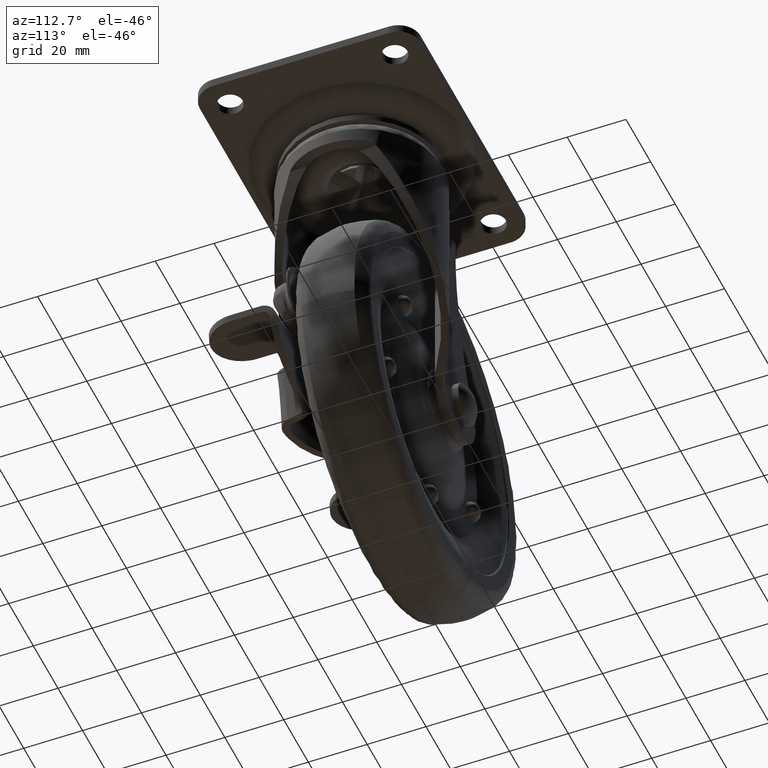
[diagram: clean part render]
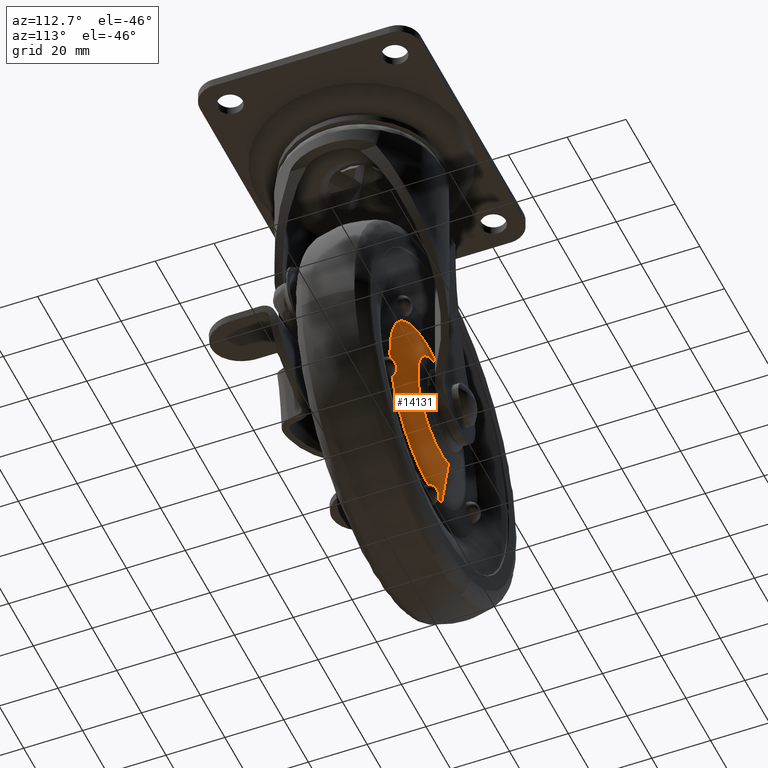
[diagram: same view with one face highlighted and labeled with its STEP entity id]
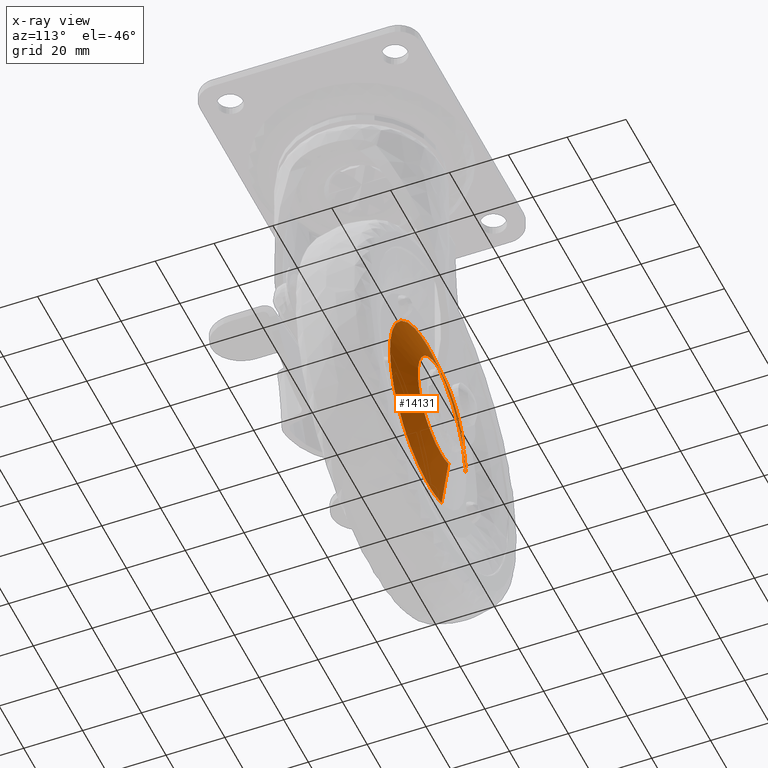
[diagram: x-ray of the same camera — body ghosted, the highlighted face saturated]
A machine part, auxiliary view. The second image highlights one B-rep face of the part: STEP entity #14131.
The next image is the same camera in x-ray: the body ghosted, the highlighted face saturated — about 3% of this face is hidden behind the body in this view.
In plain terms, the highlighted face is a freeform B-spline surface patch.
Its self-contained STEP definition (entity closure, byte-faithful):
#13980=CARTESIAN_POINT('',(-6.359786502572412,11.797339333047880,-101.932221133108030));
#13981=CARTESIAN_POINT('',(-3.816209536860836,11.797339333047889,-102.887595287958630));
#13982=CARTESIAN_POINT('',(-1.104197470016617,11.797339333047891,-103.053469051846600));
#13983=CARTESIAN_POINT('',(16.949271581829937,11.797339333047885,-104.157666521863160));
#13984=CARTESIAN_POINT('',(18.053469051846559,11.797339333047891,-86.104197470016615));
#13985=CARTESIAN_POINT('',(19.157666521863174,11.797339333047885,-68.050728418170038));
#13986=CARTESIAN_POINT('',(1.104197470016617,11.797339333047891,-66.946530948153452));
#13987=CARTESIAN_POINT('',(-16.949271581829937,11.797339333047885,-65.842333478136823));
#13988=CARTESIAN_POINT('',(-18.053469051846559,11.797339333047891,-83.895802529983385));
#13989=CARTESIAN_POINT('',(-11.013666473727897,7.392566516673801,-114.322656687300590));
#13990=CARTESIAN_POINT('',(-6.608784589835580,7.392566516673802,-115.977141833128670));
#13991=CARTESIAN_POINT('',(-1.912212406969666,7.392566516673802,-116.264396493558710));
#13992=CARTESIAN_POINT('',(29.352184086588998,7.392566516673802,-118.176608900528340));
#13993=CARTESIAN_POINT('',(31.264396493558660,7.392566516673802,-86.912212406969672));
#13994=CARTESIAN_POINT('',(33.176608900528329,7.392566516673802,-55.647815913411016));
#13995=CARTESIAN_POINT('',(1.912212406969666,7.392566516673802,-53.735603506441343));
#13996=CARTESIAN_POINT('',(-29.352184086588998,7.392566516673802,-51.823391099471650));
#13997=CARTESIAN_POINT('',(-31.264396493558660,7.392566516673802,-83.087787593030328));
#14005=(BOUNDED_SURFACE()B_SPLINE_SURFACE(2,1,((#13980,#13989),(#13981,#13990),(#13982,#13991),(#13983,#13992),(#13984,#13993),(#13985,#13994),(#13986,#13995),(#13987,#13996),(#13988,#13997)),.UNSPECIFIED.,.F.,.F.,.U.)B_SPLINE_SURFACE_WITH_KNOTS((3,2,2,2,3),(2,2),(0.0,10.379469440413910,62.276816642483482,114.174163844552990,166.071511046622590),(0.0,13.949319537969931),.UNSPECIFIED.)GEOMETRIC_REPRESENTATION_ITEM()RATIONAL_B_SPLINE_SURFACE(((0.906274169979695,0.906274169979695),(0.941421356237309,0.941421356237309),(1.0,1.0),(0.707106781186548,0.707106781186548),(1.0,1.0),(0.707106781186548,0.707106781186548),(1.0,1.0),(0.707106781186548,0.707106781186548),(1.0,1.0)))REPRESENTATION_ITEM('')SURFACE());
#14006=CARTESIAN_POINT('',(-6.470527252131586,11.692526178559509,-102.227056006314000));
#14007=VERTEX_POINT('',#14006);
#14008=CARTESIAN_POINT('',(0.0,11.692526178583300,-103.402151547105110));
#14009=VERTEX_POINT('',#14008);
#14010=CARTESIAN_POINT('',(-6.470527252131586,11.692526178559509,-102.227056006313970));
#14011=CARTESIAN_POINT('',(-3.341966641209730,11.692526178583279,-103.402151547105150));
#14012=CARTESIAN_POINT('',(0.0,11.692526178583300,-103.402151547105110));
#14020=(BOUNDED_CURVE()B_SPLINE_CURVE(2,(#14010,#14011,#14012),.UNSPECIFIED.,.F.,.U.)B_SPLINE_CURVE_WITH_KNOTS((3,3),(0.940284170886687,1.0),.UNSPECIFIED.)CURVE()GEOMETRIC_REPRESENTATION_ITEM()RATIONAL_B_SPLINE_CURVE((0.893499554620808,0.930038554387550,1.0))REPRESENTATION_ITEM(''));
#14021=EDGE_CURVE('',#14007,#14009,#14020,.T.);
#14022=ORIENTED_EDGE('',*,*,#14021,.T.);
#14023=CARTESIAN_POINT('',(18.279071310351551,11.692526178578779,-87.124790247107441));
#14024=VERTEX_POINT('',#14023);
#14025=CARTESIAN_POINT('',(0.0,11.692526178583300,-103.402151547105110));
#14026=CARTESIAN_POINT('',(16.386963228686493,11.692526178583138,-103.402151547105550));
#14027=CARTESIAN_POINT('',(18.279071310351547,11.692526178578779,-87.124790247107441));
#14035=(BOUNDED_CURVE()B_SPLINE_CURVE(2,(#14025,#14026,#14027),.UNSPECIFIED.,.F.,.U.)B_SPLINE_CURVE_WITH_KNOTS((3,3),(0.0,0.229999999985946),.UNSPECIFIED.)CURVE()GEOMETRIC_REPRESENTATION_ITEM()RATIONAL_B_SPLINE_CURVE((1.0,0.730538238708090,0.956886118162997))REPRESENTATION_ITEM(''));
#14036=EDGE_CURVE('',#14009,#14024,#14035,.T.);
#14037=ORIENTED_EDGE('',*,*,#14036,.T.);
#14038=CARTESIAN_POINT('',(0.0,11.692526178583140,-66.597848452894453));
#14039=VERTEX_POINT('',#14038);
#14040=CARTESIAN_POINT('',(18.279071310351544,11.692526178578786,-87.124790247107441));
#14041=CARTESIAN_POINT('',(18.402151547105550,11.692526178583138,-86.065959886317927));
#14042=CARTESIAN_POINT('',(18.402151547105550,11.692526178583140,-85.0));
#14043=CARTESIAN_POINT('',(18.402151547105550,11.692526178583137,-66.597848452894468));
#14044=CARTESIAN_POINT('',(0.0,11.692526178583140,-66.597848452894453));
#14052=(BOUNDED_CURVE()B_SPLINE_CURVE(2,(#14040,#14041,#14042,#14043,#14044),.UNSPECIFIED.,.F.,.U.)B_SPLINE_CURVE_WITH_KNOTS((3,2,3),(0.229999999985946,0.250000000000000,0.500000000000000),.UNSPECIFIED.)CURVE()GEOMETRIC_REPRESENTATION_ITEM()RATIONAL_B_SPLINE_CURVE((0.956886118162997,0.976568542478458,1.0,0.707106781186547,1.0))REPRESENTATION_ITEM(''));
#14053=EDGE_CURVE('',#14024,#14039,#14052,.T.);
#14054=ORIENTED_EDGE('',*,*,#14053,.T.);
#14055=CARTESIAN_POINT('',(-18.367827825088721,11.692526178533180,-83.876575522758799));
#14056=VERTEX_POINT('',#14055);
#14057=CARTESIAN_POINT('',(0.0,11.692526178583140,-66.597848452894453));
#14058=CARTESIAN_POINT('',(-17.311015602625410,11.692526178583138,-66.597848452894468));
#14059=CARTESIAN_POINT('',(-18.367827825088721,11.692526178533180,-83.876575522758799));
#14067=(BOUNDED_CURVE()B_SPLINE_CURVE(2,(#14057,#14058,#14059),.UNSPECIFIED.,.F.,.U.)B_SPLINE_CURVE_WITH_KNOTS((3,3),(0.500000000000000,0.739332962223515),.UNSPECIFIED.)CURVE()GEOMETRIC_REPRESENTATION_ITEM()RATIONAL_B_SPLINE_CURVE((1.0,0.719603993304785,0.976072041633653))REPRESENTATION_ITEM(''));
#14068=EDGE_CURVE('',#14039,#14056,#14067,.T.);
#14069=ORIENTED_EDGE('',*,*,#14068,.T.);
#14070=CARTESIAN_POINT('',(-30.942178751080359,7.499999999998607,-83.107495274391624));
#14071=VERTEX_POINT('',#14070);
#14072=CARTESIAN_POINT('',(-18.367827825088721,11.692526178533180,-83.876575522758799));
#14073=CARTESIAN_POINT('',(-30.942178751080359,7.499999999998607,-83.107495274391624));
#14074=QUASI_UNIFORM_CURVE('',1,(#14072,#14073),.UNSPECIFIED.,.F.,.U.);
#14075=EDGE_CURVE('',#14056,#14071,#14074,.T.);
#14076=ORIENTED_EDGE('',*,*,#14075,.T.);
#14077=CARTESIAN_POINT('',(0.0,7.500000000000000,-54.000000000000007));
#14078=VERTEX_POINT('',#14077);
#14079=CARTESIAN_POINT('',(0.0,7.500000000000000,-54.000000000000007));
#14080=CARTESIAN_POINT('',(-29.161888074024450,7.500000000000000,-54.000000000000021));
#14081=CARTESIAN_POINT('',(-30.942178751080363,7.499999999998607,-83.107495274391624));
#14089=(BOUNDED_CURVE()B_SPLINE_CURVE(2,(#14079,#14080,#14081),.UNSPECIFIED.,.F.,.U.)B_SPLINE_CURVE_WITH_KNOTS((3,3),(0.500000000000000,0.739332962241661),.UNSPECIFIED.)CURVE()GEOMETRIC_REPRESENTATION_ITEM()RATIONAL_B_SPLINE_CURVE((1.0,0.719603993283526,0.976072041672542))REPRESENTATION_ITEM(''));
#14090=EDGE_CURVE('',#14078,#14071,#14089,.T.);
#14091=ORIENTED_EDGE('',*,*,#14090,.F.);
#14092=CARTESIAN_POINT('',(0.0,7.500000000000000,-116.0));
#14093=VERTEX_POINT('',#14092);
#14094=CARTESIAN_POINT('',(0.0,7.500000000000000,-116.0));
#14095=CARTESIAN_POINT('',(31.000000000000007,7.500000000000000,-116.0));
#14096=CARTESIAN_POINT('',(31.0,7.500000000000000,-85.0));
#14097=CARTESIAN_POINT('',(31.000000000000007,7.500000000000000,-54.000000000000021));
#14098=CARTESIAN_POINT('',(0.0,7.500000000000000,-54.000000000000007));
#14106=(BOUNDED_CURVE()B_SPLINE_CURVE(2,(#14094,#14095,#14096,#14097,#14098),.UNSPECIFIED.,.F.,.U.)B_SPLINE_CURVE_WITH_KNOTS((3,2,3),(0.0,0.250000000000000,0.500000000000000),.UNSPECIFIED.)CURVE()GEOMETRIC_REPRESENTATION_ITEM()RATIONAL_B_SPLINE_CURVE((1.0,0.707106781186548,1.0,0.707106781186548,1.0))REPRESENTATION_ITEM(''));
#14107=EDGE_CURVE('',#14093,#14078,#14106,.T.);
#14108=ORIENTED_EDGE('',*,*,#14107,.F.);
#14109=CARTESIAN_POINT('',(-10.900157206553001,7.499999999985758,-114.020450941966500));
#14110=VERTEX_POINT('',#14109);
#14111=CARTESIAN_POINT('',(-10.900157206552997,7.499999999985759,-114.020450941966500));
#14112=CARTESIAN_POINT('',(-5.629828968510090,7.499999999999999,-116.000000000000030));
#14113=CARTESIAN_POINT('',(0.0,7.500000000000000,-116.0));
#14121=(BOUNDED_CURVE()B_SPLINE_CURVE(2,(#14111,#14112,#14113),.UNSPECIFIED.,.F.,.U.)B_SPLINE_CURVE_WITH_KNOTS((3,3),(0.940284170894564,1.0),.UNSPECIFIED.)CURVE()GEOMETRIC_REPRESENTATION_ITEM()RATIONAL_B_SPLINE_CURVE((0.893499554630448,0.930038554396779,1.0))REPRESENTATION_ITEM(''));
#14122=EDGE_CURVE('',#14110,#14093,#14121,.T.);
#14123=ORIENTED_EDGE('',*,*,#14122,.F.);
#14124=CARTESIAN_POINT('',(-6.470527252131586,11.692526178559509,-102.227056006314000));
#14125=CARTESIAN_POINT('',(-10.900157206553001,7.499999999985758,-114.020450941966500));
#14126=QUASI_UNIFORM_CURVE('',1,(#14124,#14125),.UNSPECIFIED.,.F.,.U.);
#14127=EDGE_CURVE('',#14007,#14110,#14126,.T.);
#14128=ORIENTED_EDGE('',*,*,#14127,.F.);
#14129=EDGE_LOOP('',(#14022,#14037,#14054,#14069,#14076,#14091,#14108,#14123,#14128));
#14130=FACE_OUTER_BOUND('',#14129,.T.);
#14131=ADVANCED_FACE('',(#14130),#14005,.T.);